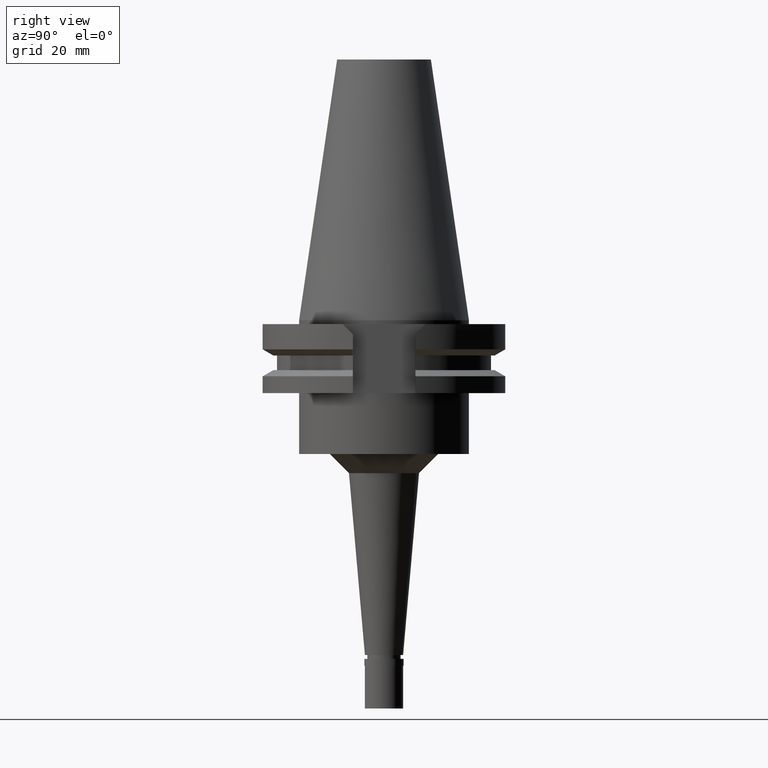
[diagram: clean part render]
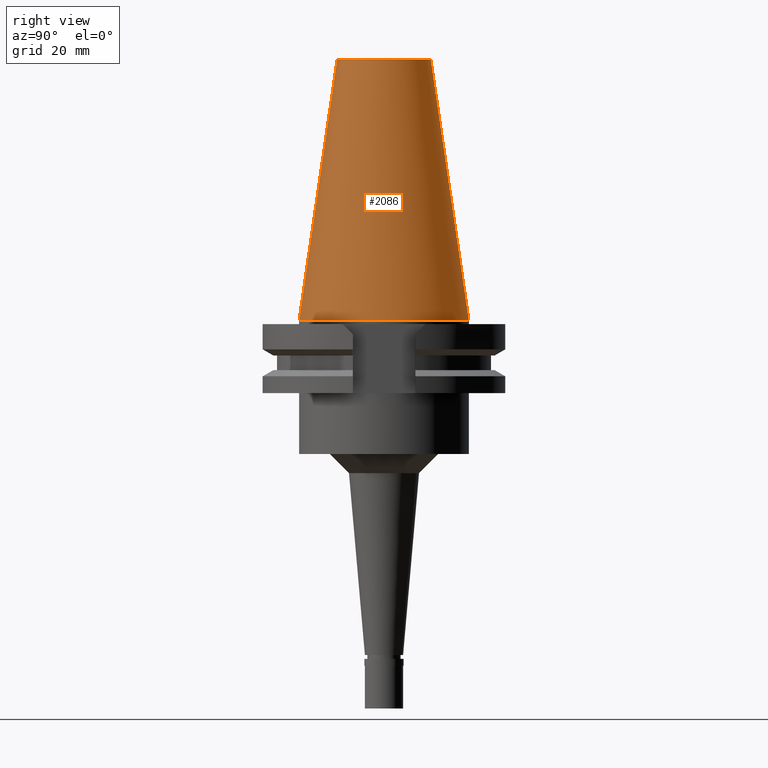
[diagram: same view with one face highlighted and labeled with its STEP entity id]
A machine part, right view. The second image highlights one B-rep face of the part: STEP entity #2086.
In plain terms, the highlighted conical surface has half-angle 8.297 deg.
Its self-contained STEP definition (entity closure, byte-faithful):
#58 = DIRECTION ( 'NONE',  ( 0.0000000000000000000, 0.0000000000000000000, -1.000000000000000000 ) ) ;
#187 = VERTEX_POINT ( 'NONE', #2322 ) ;
#356 = CARTESIAN_POINT ( 'NONE',  ( 0.0000000000000000000, 1.642557519355999895E-14, -3.126388037344000570E-13 ) ) ;
#373 = CARTESIAN_POINT ( 'NONE',  ( 0.0000000000000000000, 12.27186888070000137, 68.25000000000000000 ) ) ;
#432 = CARTESIAN_POINT ( 'NONE',  ( 0.0000000000000000000, -12.27186888070000137, 68.25000000000000000 ) ) ;
#435 = VECTOR ( 'NONE', #1412, 1000.000000000000114 ) ;
#545 = DIRECTION ( 'NONE',  ( 0.0000000000000000000, 1.000000000000000000, 0.0000000000000000000 ) ) ;
#588 = CONICAL_SURFACE ( 'NONE', #2184, 17.24843444035000317, 0.1448125860318199565 ) ;
#680 = AXIS2_PLACEMENT_3D ( 'NONE', #356, #1071, #2500 ) ;
#682 = CARTESIAN_POINT ( 'NONE',  ( 0.0000000000000000000, 22.22500000000000142, -1.847411112975999717E-13 ) ) ;
#744 = CARTESIAN_POINT ( 'NONE',  ( 0.0000000000000000000, 12.27186888070000137, 68.25000000000000000 ) ) ;
#787 = CARTESIAN_POINT ( 'NONE',  ( 0.0000000000000000000, 1.642557519355999895E-14, 34.12500000000000000 ) ) ;
#915 = ORIENTED_EDGE ( 'NONE', *, *, #1137, .F. ) ;
#936 = ORIENTED_EDGE ( 'NONE', *, *, #2422, .T. ) ;
#1046 = DIRECTION ( 'NONE',  ( 0.0000000000000000000, -1.000000000000000000, 0.0000000000000000000 ) ) ;
#1071 = DIRECTION ( 'NONE',  ( 0.0000000000000000000, 0.0000000000000000000, -1.000000000000000000 ) ) ;
#1137 = EDGE_CURVE ( 'NONE', #1149, #3035, #2503, .T. ) ;
#1149 = VERTEX_POINT ( 'NONE', #373 ) ;
#1166 = CARTESIAN_POINT ( 'NONE',  ( 0.0000000000000000000, -22.22500000000000142, -1.847411112975999717E-13 ) ) ;
#1297 = ORIENTED_EDGE ( 'NONE', *, *, #1628, .T. ) ;
#1412 = DIRECTION ( 'NONE',  ( 0.0000000000000000000, -0.1443069799456937474, -0.9895329683941577192 ) ) ;
#1455 = CIRCLE ( 'NONE', #2398, 12.27186888070000137 ) ;
#1469 = ORIENTED_EDGE ( 'NONE', *, *, #1683, .F. ) ;
#1570 = CARTESIAN_POINT ( 'NONE',  ( 0.0000000000000000000, 1.642557519355999895E-14, 68.25000000000000000 ) ) ;
#1628 = EDGE_CURVE ( 'NONE', #1149, #187, #1455, .T. ) ;
#1659 = LINE ( 'NONE', #432, #435 ) ;
#1683 = EDGE_CURVE ( 'NONE', #3035, #2579, #1855, .T. ) ;
#1855 = CIRCLE ( 'NONE', #680, 22.22500000000000142 ) ;
#2086 = ADVANCED_FACE ( 'NONE', ( #3015 ), #588, .T. ) ;
#2184 = AXIS2_PLACEMENT_3D ( 'NONE', #787, #58, #1046 ) ;
#2322 = CARTESIAN_POINT ( 'NONE',  ( 0.0000000000000000000, -12.27186888070000137, 68.25000000000000000 ) ) ;
#2398 = AXIS2_PLACEMENT_3D ( 'NONE', #1570, #3079, #545 ) ;
#2422 = EDGE_CURVE ( 'NONE', #187, #2579, #1659, .T. ) ;
#2500 = DIRECTION ( 'NONE',  ( 0.0000000000000000000, 1.000000000000000000, 0.0000000000000000000 ) ) ;
#2503 = LINE ( 'NONE', #744, #2697 ) ;
#2525 = EDGE_LOOP ( 'NONE', ( #1297, #936, #1469, #915 ) ) ;
#2579 = VERTEX_POINT ( 'NONE', #1166 ) ;
#2697 = VECTOR ( 'NONE', #2836, 1000.000000000000114 ) ;
#2836 = DIRECTION ( 'NONE',  ( 0.0000000000000000000, 0.1443069799456937474, -0.9895329683941577192 ) ) ;
#3015 = FACE_OUTER_BOUND ( 'NONE', #2525, .T. ) ;
#3035 = VERTEX_POINT ( 'NONE', #682 ) ;
#3079 = DIRECTION ( 'NONE',  ( 0.0000000000000000000, 0.0000000000000000000, -1.000000000000000000 ) ) ;